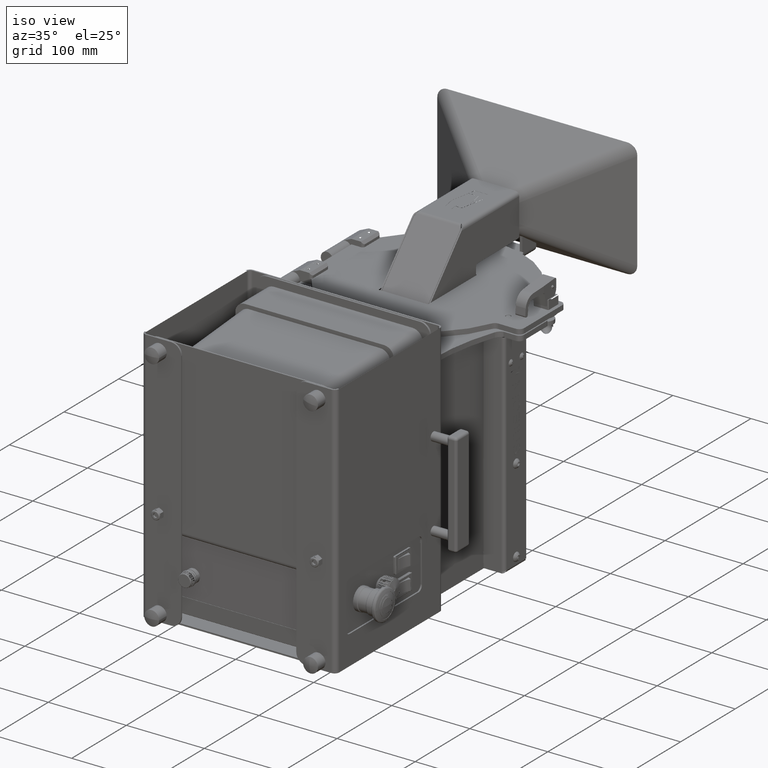
[diagram: clean part render]
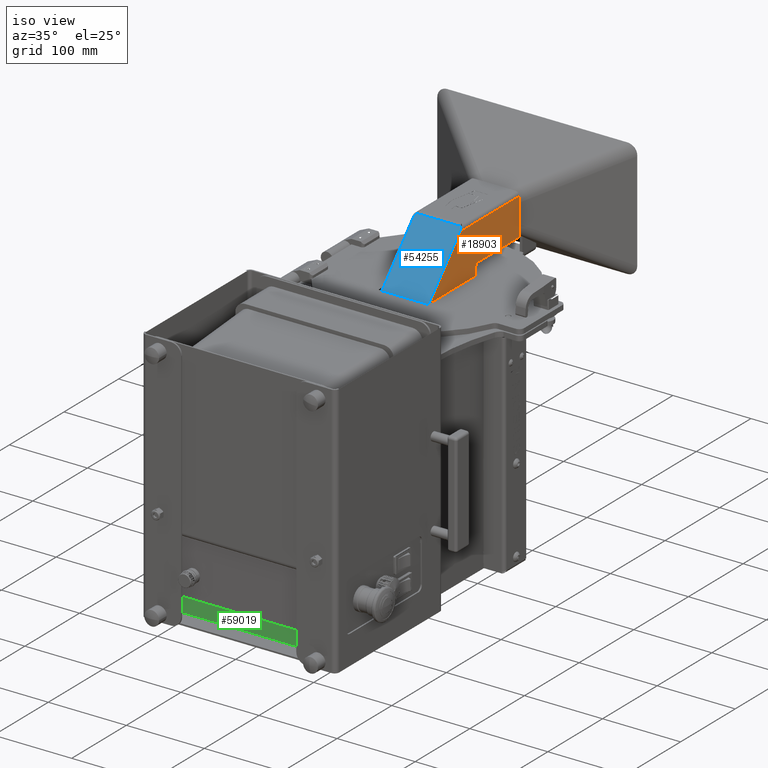
[diagram: same view with three faces highlighted in distinct colors, each labeled with its STEP entity id]
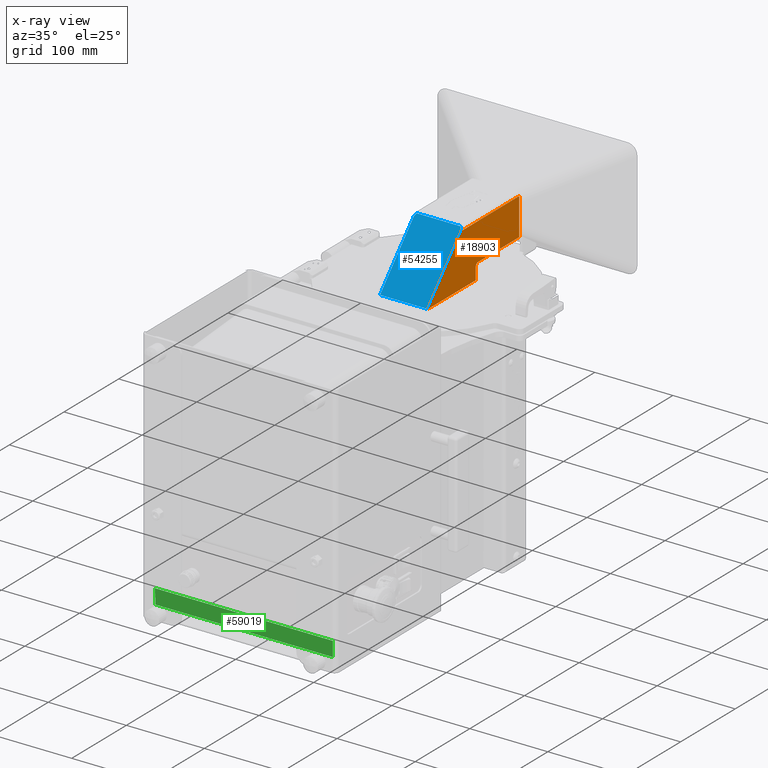
[diagram: x-ray of the same camera — body ghosted, the three highlighted faces saturated]
A machine part, iso view with three faces highlighted in distinct colors.
The next image is the same camera in x-ray (body ghosted, the three faces saturated) — at least one of them is partly hidden behind the body in this view.
Their STEP definitions:

[orange] entity #18903 — the highlighted planar face has unit normal (-1, -0, -0).
#1190 = VERTEX_POINT ( 'NONE', #2825 ) ;
#2336 = DIRECTION ( 'NONE',  ( -1.404079867223939856E-16, 1.000000000000000000, -1.679534250066793750E-17 ) ) ;
#2727 = ORIENTED_EDGE ( 'NONE', *, *, #69271, .T. ) ;
#2825 = CARTESIAN_POINT ( 'NONE',  ( 1.245042485607959604, 7.644400791136362727, 11.14381916042069420 ) ) ;
#4063 = EDGE_CURVE ( 'NONE', #56390, #1190, #42387, .T. ) ;
#6056 = CARTESIAN_POINT ( 'NONE',  ( 1.245042485607956939, 7.824400791136362443, 11.91389999999999105 ) ) ;
#6126 = DIRECTION ( 'NONE',  ( 3.491481338843132961E-15, 1.773741049807644515E-16, -1.000000000000000000 ) ) ;
#6472 = AXIS2_PLACEMENT_3D ( 'NONE', #17311, #60056, #13718 ) ;
#8128 = CARTESIAN_POINT ( 'NONE',  ( 1.245042485607955829, 10.77727363113636194, 11.91389999999999105 ) ) ;
#11115 = VECTOR ( 'NONE', #54462, 39.37007874015748143 ) ;
#11564 = DIRECTION ( 'NONE',  ( 1.404079867223939856E-16, -1.000000000000000000, 3.162025356137746661E-31 ) ) ;
#12871 = FACE_OUTER_BOUND ( 'NONE', #31397, .T. ) ;
#13718 = DIRECTION ( 'NONE',  ( -3.035386659626945721E-15, 0.000000000000000000, 1.000000000000000000 ) ) ;
#14087 = VECTOR ( 'NONE', #6126, 39.37007874015748143 ) ;
#14869 = ORIENTED_EDGE ( 'NONE', *, *, #44076, .T. ) ;
#14935 = ORIENTED_EDGE ( 'NONE', *, *, #75201, .F. ) ;
#16346 = LINE ( 'NONE', #60273, #24002 ) ;
#16601 = DIRECTION ( 'NONE',  ( 3.491481338843132961E-15, 1.365923996832136786E-16, -1.000000000000000000 ) ) ;
#17141 = VECTOR ( 'NONE', #16601, 39.37007874015748143 ) ;
#17311 = CARTESIAN_POINT ( 'NONE',  ( 1.245042485607957605, 7.824400791136362443, 11.73389999999999311 ) ) ;
#18903 = ADVANCED_FACE ( 'NONE', ( #12871 ), #53544, .F. ) ;
#20887 = CARTESIAN_POINT ( 'NONE',  ( 1.245042485607949834, 10.77727363113636194, 13.78489999999999327 ) ) ;
#21799 = CARTESIAN_POINT ( 'NONE',  ( 1.245042485607949834, 10.77727363113636194, 13.78489999999999327 ) ) ;
#24002 = VECTOR ( 'NONE', #11564, 39.37007874015748143 ) ;
#25311 = EDGE_CURVE ( 'NONE', #31813, #49541, #37374, .T. ) ;
#30047 = DIRECTION ( 'NONE',  ( -1.000000000000000000, -1.404079867223939856E-16, -3.491481338843133750E-15 ) ) ;
#30465 = DIRECTION ( 'NONE',  ( -3.491481338843133750E-15, -4.295774443275691480E-31, 1.000000000000000000 ) ) ;
#31397 = EDGE_LOOP ( 'NONE', ( #40181, #2727, #56780, #67487, #14869, #14935, #63014 ) ) ;
#31813 = VERTEX_POINT ( 'NONE', #32991 ) ;
#32991 = CARTESIAN_POINT ( 'NONE',  ( 1.245042485607950500, 6.626072026841898222, 13.78489999999999327 ) ) ;
#35593 = CARTESIAN_POINT ( 'NONE',  ( 1.245042485607950500, 6.885973631136361739, 13.78489999999999149 ) ) ;
#36513 = CARTESIAN_POINT ( 'NONE',  ( 1.245042485607956939, 7.644400791136360951, 11.91389999999999105 ) ) ;
#36626 = AXIS2_PLACEMENT_3D ( 'NONE', #35593, #30047, #30465 ) ;
#37374 = LINE ( 'NONE', #21799, #57842 ) ;
#37961 = CARTESIAN_POINT ( 'NONE',  ( 1.245042485607957383, 7.644400791136360951, 11.73389999999999311 ) ) ;
#38673 = EDGE_CURVE ( 'NONE', #49541, #63694, #40143, .T. ) ;
#40143 = LINE ( 'NONE', #46888, #17141 ) ;
#40181 = ORIENTED_EDGE ( 'NONE', *, *, #25311, .F. ) ;
#41157 = VERTEX_POINT ( 'NONE', #72229 ) ;
#42387 = LINE ( 'NONE', #47552, #14087 ) ;
#44076 = EDGE_CURVE ( 'NONE', #56390, #47188, #74110, .T. ) ;
#46888 = CARTESIAN_POINT ( 'NONE',  ( 1.245042485607956273, 10.77727363113636194, 11.91389999999999105 ) ) ;
#47188 = VERTEX_POINT ( 'NONE', #6056 ) ;
#47552 = CARTESIAN_POINT ( 'NONE',  ( 1.245042485607956939, 7.644400791136360951, 11.91389999999999105 ) ) ;
#48444 = CARTESIAN_POINT ( 'NONE',  ( 1.245042485607950056, 6.626072026841898222, 13.78489999999999327 ) ) ;
#49541 = VERTEX_POINT ( 'NONE', #20887 ) ;
#50387 = VECTOR ( 'NONE', #54843, 39.37007874015748143 ) ;
#53544 = PLANE ( 'NONE',  #36626 ) ;
#54462 = DIRECTION ( 'NONE',  ( 1.404079867223939856E-16, -1.000000000000000000, 3.162025356137746661E-31 ) ) ;
#54843 = DIRECTION ( 'NONE',  ( 2.858024331315550056E-15, -0.6760918998327231089, -0.7368173063796609190 ) ) ;
#55231 = LINE ( 'NONE', #48444, #50387 ) ;
#56390 = VERTEX_POINT ( 'NONE', #37961 ) ;
#56780 = ORIENTED_EDGE ( 'NONE', *, *, #62437, .F. ) ;
#57842 = VECTOR ( 'NONE', #2336, 39.37007874015748143 ) ;
#60056 = DIRECTION ( 'NONE',  ( -1.000000000000000000, -1.404079867223939856E-16, -3.491481338843132961E-15 ) ) ;
#60273 = CARTESIAN_POINT ( 'NONE',  ( 1.245042485607960048, 4.287482328250997732, 11.14381916042069420 ) ) ;
#62437 = EDGE_CURVE ( 'NONE', #1190, #41157, #16346, .T. ) ;
#63014 = ORIENTED_EDGE ( 'NONE', *, *, #38673, .F. ) ;
#63694 = VERTEX_POINT ( 'NONE', #8128 ) ;
#67487 = ORIENTED_EDGE ( 'NONE', *, *, #4063, .F. ) ;
#69271 = EDGE_CURVE ( 'NONE', #31813, #41157, #55231, .T. ) ;
#72229 = CARTESIAN_POINT ( 'NONE',  ( 1.245042485607959826, 4.202658044865075659, 11.14381916042069243 ) ) ;
#72926 = LINE ( 'NONE', #36513, #11115 ) ;
#74110 = CIRCLE ( 'NONE', #6472, 0.1800000000000007983 ) ;
#75201 = EDGE_CURVE ( 'NONE', #63694, #47188, #72926, .T. ) ;

[blue] entity #54255 — the highlighted planar face has unit normal (-0, -0.7368, 0.6761).
#5371 = AXIS2_PLACEMENT_3D ( 'NONE', #48133, #5489, #78995 ) ;
#5489 = DIRECTION ( 'NONE',  ( -3.944304526105059027E-31, -0.7368173063796609190, 0.6760918998327231089 ) ) ;
#7525 = DIRECTION ( 'NONE',  ( -1.000000000000000000, 2.395194958926959723E-32, -5.572944177039010753E-31 ) ) ;
#9066 = CARTESIAN_POINT ( 'NONE',  ( 4.248560794627553991E-05, 6.744873116964657633, 13.91437159881795438 ) ) ;
#10932 = CARTESIAN_POINT ( 'NONE',  ( -1.172457514392062805, 4.202500000000026326, 11.14364692023887216 ) ) ;
#11600 = EDGE_CURVE ( 'NONE', #46138, #38230, #13920, .T. ) ;
#12527 = CARTESIAN_POINT ( 'NONE',  ( -1.172457514392053035, 6.744873116964657633, 13.91437159881795438 ) ) ;
#13920 = LINE ( 'NONE', #70224, #17389 ) ;
#15447 = VERTEX_POINT ( 'NONE', #10932 ) ;
#17389 = VECTOR ( 'NONE', #62615, 39.37007874015748854 ) ;
#19436 = EDGE_CURVE ( 'NONE', #38230, #27267, #75785, .T. ) ;
#21893 = VECTOR ( 'NONE', #31632, 39.37007874015748143 ) ;
#24522 = CARTESIAN_POINT ( 'NONE',  ( 1.172542485607946272, 6.744873116964657633, 13.91437159881795438 ) ) ;
#26302 = LINE ( 'NONE', #43781, #31282 ) ;
#27267 = VERTEX_POINT ( 'NONE', #36150 ) ;
#27734 = ORIENTED_EDGE ( 'NONE', *, *, #47561, .F. ) ;
#30845 = LINE ( 'NONE', #49103, #21893 ) ;
#31246 = VECTOR ( 'NONE', #60034, 39.37007874015748143 ) ;
#31282 = VECTOR ( 'NONE', #7525, 39.37007874015748143 ) ;
#31632 = DIRECTION ( 'NONE',  ( -0.3858249616967739382, -0.6237434575856888319, -0.6797670174778509544 ) ) ;
#32411 = CARTESIAN_POINT ( 'NONE',  ( 1.172542485607956264, 4.202500000000024549, 11.14364692023887038 ) ) ;
#32662 = EDGE_CURVE ( 'NONE', #46138, #76788, #42021, .T. ) ;
#32683 = EDGE_CURVE ( 'NONE', #71669, #15447, #67237, .T. ) ;
#36150 = CARTESIAN_POINT ( 'NONE',  ( -1.108971491430685630, 6.744873116964657633, 13.91437159881795438 ) ) ;
#36431 = DIRECTION ( 'NONE',  ( 2.713500785161920674E-15, -0.6760918998327228868, -0.7368173063796610300 ) ) ;
#36587 = FACE_OUTER_BOUND ( 'NONE', #55266, .T. ) ;
#38230 = VERTEX_POINT ( 'NONE', #46307 ) ;
#38403 = ORIENTED_EDGE ( 'NONE', *, *, #19436, .T. ) ;
#42021 = LINE ( 'NONE', #24522, #43941 ) ;
#43781 = CARTESIAN_POINT ( 'NONE',  ( -1.053457514392053707, 4.202500000000026326, 11.14364692023887216 ) ) ;
#43941 = VECTOR ( 'NONE', #36431, 39.37007874015748143 ) ;
#46138 = VERTEX_POINT ( 'NONE', #46797 ) ;
#46307 = CARTESIAN_POINT ( 'NONE',  ( 1.109056462646575536, 6.744873116964657633, 13.91437159881795438 ) ) ;
#46797 = CARTESIAN_POINT ( 'NONE',  ( 1.172542485607955598, 6.642238514744651212, 13.80251853391982131 ) ) ;
#47561 = EDGE_CURVE ( 'NONE', #76788, #15447, #26302, .T. ) ;
#47919 = ORIENTED_EDGE ( 'NONE', *, *, #32662, .F. ) ;
#48133 = CARTESIAN_POINT ( 'NONE',  ( 4.248560794641212905E-05, 7.703705465440847888, 14.95932461252616363 ) ) ;
#49103 = CARTESIAN_POINT ( 'NONE',  ( -0.3698652732947882993, 7.939748290400128639, 15.21656839627771163 ) ) ;
#49313 = PLANE ( 'NONE',  #5371 ) ;
#50413 = CARTESIAN_POINT ( 'NONE',  ( -1.172457514392054367, 6.642238514744672528, 13.80251853391984262 ) ) ;
#53246 = VECTOR ( 'NONE', #57710, 39.37007874015748143 ) ;
#53540 = ORIENTED_EDGE ( 'NONE', *, *, #32683, .T. ) ;
#54255 = ADVANCED_FACE ( 'NONE', ( #36587 ), #49313, .T. ) ;
#55266 = EDGE_LOOP ( 'NONE', ( #27734, #47919, #64559, #38403, #62612, #53540 ) ) ;
#56334 = EDGE_CURVE ( 'NONE', #27267, #71669, #30845, .T. ) ;
#57710 = DIRECTION ( 'NONE',  ( -1.000000000000000000, 2.395194958926959723E-32, -5.572944177039010753E-31 ) ) ;
#60034 = DIRECTION ( 'NONE',  ( -2.592522445611297114E-15, -0.6760918998327229978, -0.7368173063796610300 ) ) ;
#62612 = ORIENTED_EDGE ( 'NONE', *, *, #56334, .T. ) ;
#62615 = DIRECTION ( 'NONE',  ( -0.3858249616967591167, 0.6237434575856929397, 0.6797670174778555063 ) ) ;
#64559 = ORIENTED_EDGE ( 'NONE', *, *, #11600, .T. ) ;
#67237 = LINE ( 'NONE', #12527, #31246 ) ;
#70224 = CARTESIAN_POINT ( 'NONE',  ( 0.3699502445107010762, 7.939748290400147290, 15.21656839627773117 ) ) ;
#71669 = VERTEX_POINT ( 'NONE', #50413 ) ;
#75785 = LINE ( 'NONE', #9066, #53246 ) ;
#76788 = VERTEX_POINT ( 'NONE', #32411 ) ;
#78995 = DIRECTION ( 'NONE',  ( -3.944304526105059027E-31, -0.6760918998327231089, -0.7368173063796609190 ) ) ;

[green] entity #59019 — the highlighted planar face has unit normal (-0, -0.9998, -0.0175).
#4391 = LINE ( 'NONE', #36246, #70791 ) ;
#5954 = DIRECTION ( 'NONE',  ( 0.01744974916069420498, 0.01744974916068229090, -0.9996954598818872384 ) ) ;
#6405 = EDGE_CURVE ( 'NONE', #23615, #39179, #72799, .T. ) ;
#6727 = FACE_OUTER_BOUND ( 'NONE', #16512, .T. ) ;
#6999 = DIRECTION ( 'NONE',  ( -1.000000000000000000, 2.483043954817879126E-15, 7.023203698338271148E-15 ) ) ;
#8232 = VERTEX_POINT ( 'NONE', #67150 ) ;
#10585 = VECTOR ( 'NONE', #11669, 39.37007874015748143 ) ;
#11669 = DIRECTION ( 'NONE',  ( -1.000000000000000000, 2.483100314640327549E-15, 7.019974846272692446E-15 ) ) ;
#16512 = EDGE_LOOP ( 'NONE', ( #23735, #57917, #72351, #67061 ) ) ;
#22211 = AXIS2_PLACEMENT_3D ( 'NONE', #50156, #31080, #74254 ) ;
#23615 = VERTEX_POINT ( 'NONE', #32057 ) ;
#23735 = ORIENTED_EDGE ( 'NONE', *, *, #60982, .F. ) ;
#25558 = VECTOR ( 'NONE', #65081, 39.37007874015748854 ) ;
#30453 = CARTESIAN_POINT ( 'NONE',  ( -4.620699380357259578, -7.424999999999992717, 1.356694488188975978 ) ) ;
#31080 = DIRECTION ( 'NONE',  ( -2.605237580631899820E-15, -0.9998476951563912696, -0.01745240643728352553 ) ) ;
#32057 = CARTESIAN_POINT ( 'NONE',  ( 4.591935022361719021, -7.425000000000015810, 1.356694488188911363 ) ) ;
#32642 = VERTEX_POINT ( 'NONE', #54788 ) ;
#35309 = VECTOR ( 'NONE', #6999, 39.37007874015748143 ) ;
#36246 = CARTESIAN_POINT ( 'NONE',  ( -4.384514885438441034, -7.424999999999994493, 1.356694488188974423 ) ) ;
#37803 = PLANE ( 'NONE',  #22211 ) ;
#38109 = CARTESIAN_POINT ( 'NONE',  ( -2.258494655947816288, -7.411931068247100463, 0.6079758895103255512 ) ) ;
#39179 = VERTEX_POINT ( 'NONE', #50667 ) ;
#46610 = LINE ( 'NONE', #76331, #25558 ) ;
#47397 = EDGE_CURVE ( 'NONE', #39179, #32642, #4391, .T. ) ;
#50156 = CARTESIAN_POINT ( 'NONE',  ( -4.620699380357259578, -7.424999999999992717, 1.356694488188975978 ) ) ;
#50667 = CARTESIAN_POINT ( 'NONE',  ( -4.384514885438425935, -7.424999999999994493, 1.356694488188974423 ) ) ;
#54788 = CARTESIAN_POINT ( 'NONE',  ( -4.371445953685533681, -7.411931068247096910, 0.6079758895103402061 ) ) ;
#57917 = ORIENTED_EDGE ( 'NONE', *, *, #62872, .F. ) ;
#59019 = ADVANCED_FACE ( 'NONE', ( #6727 ), #37803, .T. ) ;
#60982 = EDGE_CURVE ( 'NONE', #8232, #32642, #74946, .T. ) ;
#62872 = EDGE_CURVE ( 'NONE', #23615, #8232, #46610, .T. ) ;
#65081 = DIRECTION ( 'NONE',  ( -0.01744974916068956633, 0.01744974916068275581, -0.9996954598818872384 ) ) ;
#67061 = ORIENTED_EDGE ( 'NONE', *, *, #47397, .T. ) ;
#67150 = CARTESIAN_POINT ( 'NONE',  ( 4.578866090608799233, -7.411931068247116450, 0.6079758895102773675 ) ) ;
#70791 = VECTOR ( 'NONE', #5954, 39.37007874015748854 ) ;
#72351 = ORIENTED_EDGE ( 'NONE', *, *, #6405, .T. ) ;
#72799 = LINE ( 'NONE', #30453, #10585 ) ;
#74254 = DIRECTION ( 'NONE',  ( 6.975569594185942819E-15, -0.01745240643728352553, 0.9998476951563912696 ) ) ;
#74946 = LINE ( 'NONE', #38109, #35309 ) ;
#76331 = CARTESIAN_POINT ( 'NONE',  ( 4.590568385933642581, -7.423633363571941146, 1.278399939661310603 ) ) ;